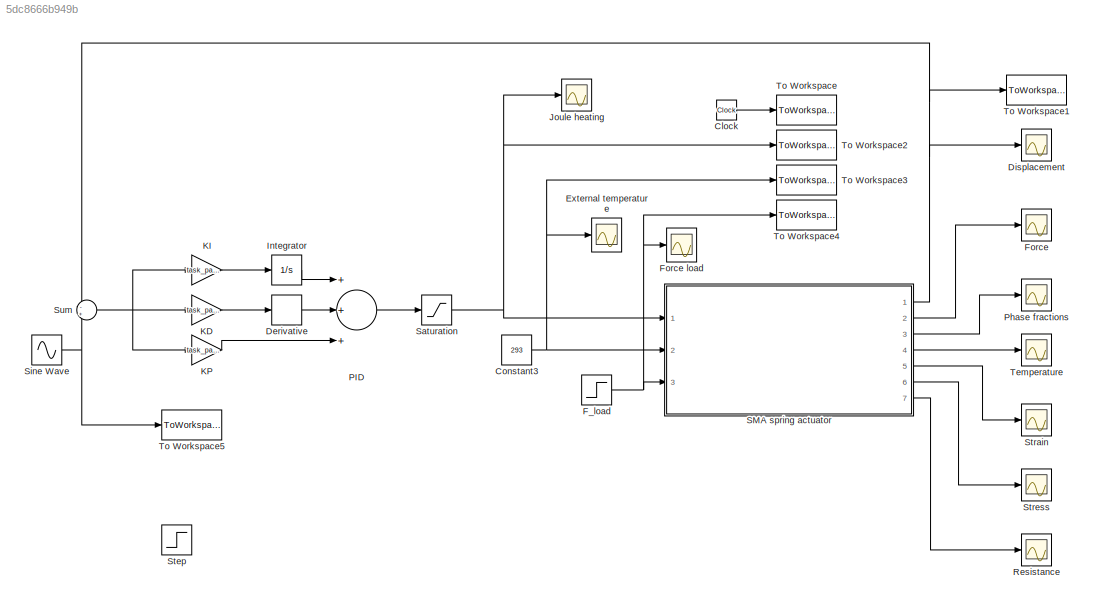
MODEL slx_5dc8666b949b
KIND model
CONFIG AbsTol = 1e-9
CONFIG EnableMultiTasking = on
CONFIG FixedStep = auto
CONFIG MaxStep = auto
CONFIG MinStep = auto
CONFIG RelTol = 1e-9
CONFIG SampleTimeConstraint = Unconstrained
CONFIG Solver = ode15s
CONFIG SolverName = ode15s
CONFIG StartTime = 0.0
CONFIG StopTime = 3.5
BLOCK [Scope]  Force load
  Floating = off
  NumInputPorts = 1
  Ports = [1]
  ScopeSpecificationString = C++SS(StrPVP('Open','off'),StrPVP('TimeRange','auto'),StrPVP('TickLabels','OneTimeTick'),StrPVP('ShowLegends','off'),StrPVP('LimitDataPoints','off'),StrPVP('MaxDataPoints','5000'),StrPVP('SaveToWorkspace','off'),StrPVP('SaveName','ScopeData2'),StrPVP('YMin','-10'),StrPVP('YMax','10'),StrPVP('BlockParamSampleInput','off'),StrPVP('BlockParamSampleTime','-1'),StrPVP('ZoomMode','on'),StrPVP('Grid','on...<+603ch>
BLOCK [Clock] Clock
BLOCK [Constant] Constant3
  Value = 293
BLOCK [Derivative] Derivative
BLOCK [Scope] Displacement
  Floating = off
  NumInputPorts = 1
  Ports = [1]
  ScopeSpecificationString = Simulink.scopes.TimeScopeBlockCfg('CurrentConfiguration', extmgr.ConfigurationSet(extmgr.Configuration('Core','General UI',true,'FigureColor',[0.156862745098039 0.156862745098039 0.156862745098039]),extmgr.Configuration('Core','Source UI',true),extmgr.Configuration('Sources','WiredSimulink',true,'DataLoggingSaveFormat','StructureWithTime','DataLoggingDecimation','1','DataLoggingDecimateData',true)...<+2795ch>
BLOCK [Scope] External temperature
  Floating = off
  NumInputPorts = 1
  Ports = [1]
  ScopeSpecificationString = C++SS(StrPVP('Open','off'),StrPVP('TimeRange','auto'),StrPVP('TickLabels','OneTimeTick'),StrPVP('ShowLegends','off'),StrPVP('LimitDataPoints','off'),StrPVP('MaxDataPoints','5000'),StrPVP('SaveToWorkspace','off'),StrPVP('SaveName','ScopeData2'),StrPVP('YMin','-10'),StrPVP('YMax','10'),StrPVP('BlockParamSampleInput','off'),StrPVP('BlockParamSampleTime','-1'),StrPVP('ZoomMode','on'),StrPVP('Grid','on...<+571ch>
BLOCK [Step] F_load
  After = 0.05*0
  SampleTime = 0
BLOCK [Scope] Force
  Floating = off
  NumInputPorts = 1
  Ports = [1]
  ScopeSpecificationString = Simulink.scopes.TimeScopeBlockCfg('CurrentConfiguration', extmgr.ConfigurationSet(extmgr.Configuration('Core','General UI',true,'FigureColor',[0.156862745098039 0.156862745098039 0.156862745098039]),extmgr.Configuration('Core','Source UI',true),extmgr.Configuration('Sources','WiredSimulink',true,'DataLoggingVariableName','ScopeData3','DataLoggingSaveFormat','StructureWithTime','DataLoggingDecimati...<+2806ch>
BLOCK [Integrator] Integrator
  Ports = [1, 1]
BLOCK [Scope] Joule heating
  Floating = off
  NumInputPorts = 1
  Ports = [1]
  ScopeSpecificationString = Simulink.scopes.TimeScopeBlockCfg('CurrentConfiguration', extmgr.ConfigurationSet(extmgr.Configuration('Core','General UI',true,'FigureColor',[0.156862745098039 0.156862745098039 0.156862745098039]),extmgr.Configuration('Core','Source UI',true),extmgr.Configuration('Sources','WiredSimulink',true,'DataLoggingVariableName','ScopeData1','DataLoggingSaveFormat','StructureWithTime','DataLoggingDecimati...<+2831ch>
BLOCK [Gain] KD
  Gain = task_params.D
  OutDataTypeStr = Inherit: Inherit via internal rule
  ParamDataTypeStr = Inherit: Inherit via internal rule
  SaturateOnIntegerOverflow = off
BLOCK [Gain] KI
  Gain = task_params.I
  OutDataTypeStr = Inherit: Inherit via internal rule
  ParamDataTypeStr = Inherit: Inherit via internal rule
  SaturateOnIntegerOverflow = off
BLOCK [Gain] KP
  Gain = task_params.P
  OutDataTypeStr = Inherit: Inherit via internal rule
  ParamDataTypeStr = Inherit: Inherit via internal rule
  SaturateOnIntegerOverflow = off
BLOCK [Sum] PID
  InputSameDT = off
  Inputs = +++
  OutDataTypeStr = Inherit: Inherit via internal rule
  Ports = [3, 1]
  SaturateOnIntegerOverflow = off
BLOCK [Scope] Phase fractions
  Floating = off
  NumInputPorts = 1
  Ports = [1]
  ScopeSpecificationString = Simulink.scopes.TimeScopeBlockCfg('CurrentConfiguration', extmgr.ConfigurationSet(extmgr.Configuration('Core','General UI',true,'FigureColor',[0.156862745098039 0.156862745098039 0.156862745098039]),extmgr.Configuration('Core','Source UI',true),extmgr.Configuration('Sources','WiredSimulink',true,'DataLoggingVariableName','ScopeData4','DataLoggingSaveFormat','StructureWithTime','DataLoggingDecimati...<+2838ch>
BLOCK [Scope] Resistance
  Floating = off
  NumInputPorts = 1
  Ports = [1]
  ScopeSpecificationString = Simulink.scopes.TimeScopeBlockCfg('CurrentConfiguration', extmgr.ConfigurationSet(extmgr.Configuration('Core','General UI',true,'FigureColor',[0.156862745098039 0.156862745098039 0.156862745098039]),extmgr.Configuration('Core','Source UI',true),extmgr.Configuration('Sources','WiredSimulink',true,'DataLoggingVariableName','ScopeData8','DataLoggingSaveFormat','StructureWithTime','DataLoggingDecimati...<+2818ch>
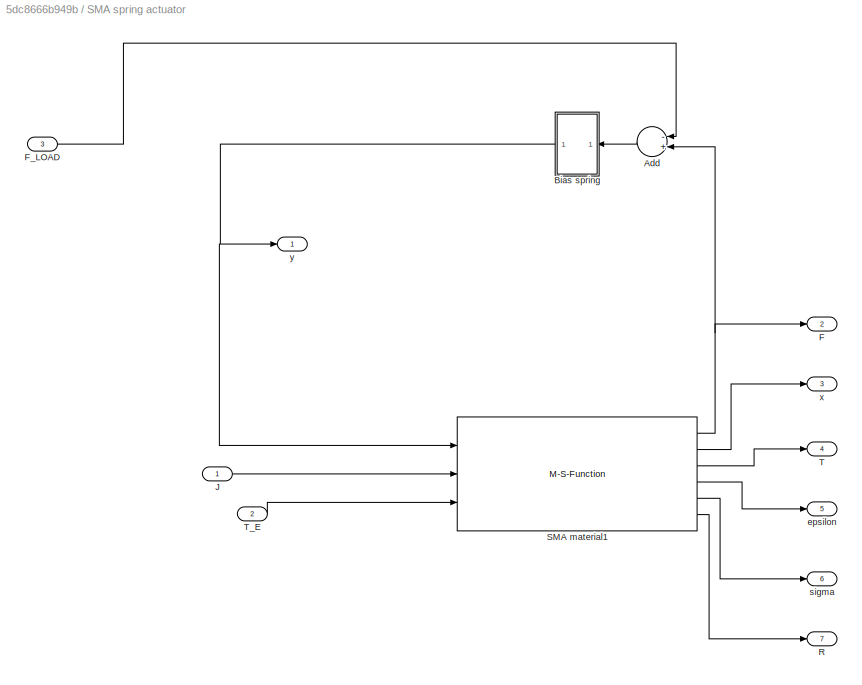
BLOCK [SubSystem] SMA spring actuator
  Ports = [3, 7]
  RequestExecContextInheritance = off
BLOCK [Sum] SMA spring actuator/Add
  InputSameDT = off
  Inputs = -+
  OutDataTypeStr = Inherit: Inherit via internal rule
  Ports = [2, 1]
  SaturateOnIntegerOverflow = off
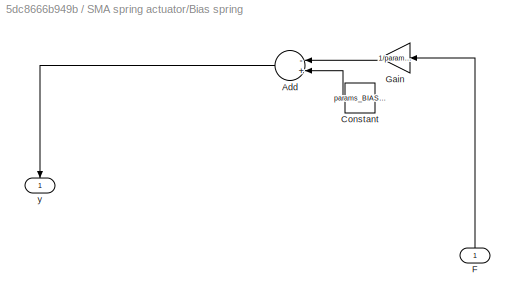
BLOCK [SubSystem] SMA spring actuator/Bias spring
  Ports = [1, 1]
  RequestExecContextInheritance = off
BLOCK [Sum] SMA spring actuator/Bias spring/Add
  InputSameDT = off
  Inputs = -+
  OutDataTypeStr = Inherit: Inherit via internal rule
  Ports = [2, 1]
  SaturateOnIntegerOverflow = off
BLOCK [Constant] SMA spring actuator/Bias spring/Constant
  Value = params_BIAS.y0s
BLOCK [Inport] SMA spring actuator/Bias spring/F
  IconDisplay = Port number
BLOCK [Gain] SMA spring actuator/Bias spring/Gain
  Gain = 1/params_BIAS.ks
  OutDataTypeStr = Inherit: Inherit via internal rule
  ParamDataTypeStr = Inherit: Inherit via internal rule
  SaturateOnIntegerOverflow = off
BLOCK [Outport] SMA spring actuator/Bias spring/y
  IconDisplay = Port number
BLOCK [Outport] SMA spring actuator/F
  IconDisplay = Port number
  Port = 2
BLOCK [Inport] SMA spring actuator/F_LOAD
  IconDisplay = Port number
  Port = 3
BLOCK [Inport] SMA spring actuator/J
  IconDisplay = Port number
BLOCK [Outport] SMA spring actuator/R
  IconDisplay = Port number
  Port = 7
BLOCK [M-S-Function] SMA spring actuator/SMA material1
  FunctionName = sSMA_displacementIn_PC2
  Parameters = params_PC2, initConds_PC2
  Ports = [3, 6]
BLOCK [Outport] SMA spring actuator/T
  IconDisplay = Port number
  Port = 4
BLOCK [Inport] SMA spring actuator/T_E
  IconDisplay = Port number
  Port = 2
BLOCK [Outport] SMA spring actuator/epsilon
  IconDisplay = Port number
  Port = 5
BLOCK [Outport] SMA spring actuator/sigma
  IconDisplay = Port number
  Port = 6
BLOCK [Outport] SMA spring actuator/x
  IconDisplay = Port number
  Port = 3
BLOCK [Outport] SMA spring actuator/y
  IconDisplay = Port number
BLOCK [Saturate] Saturation
  InputPortMap = u0
  LowerLimit = 0
  Ports = [1, 1]
  UpperLimit = 0.25
  ZeroCross = off
BLOCK [Sin] Sine Wave
  Amplitude = task_params.sine_A
  Bias = task_params.sine_bias
  Frequency = 2 * pi * task_params.sine_f
  Ports = [0, 1]
  SampleTime = 0
BLOCK [Step] Step
  After = 0.25*0.5
  SampleTime = 0
  Time = 0
BLOCK [Scope] Strain
  Floating = off
  NumInputPorts = 1
  Ports = [1]
  ScopeSpecificationString = C++SS(StrPVP('Open','off'),StrPVP('TimeRange','auto'),StrPVP('TickLabels','OneTimeTick'),StrPVP('ShowLegends','off'),StrPVP('LimitDataPoints','off'),StrPVP('MaxDataPoints','5000'),StrPVP('SaveToWorkspace','off'),StrPVP('SaveName','ScopeData6'),StrPVP('YMin','-0.0071'),StrPVP('YMax','0.06394'),StrPVP('BlockParamSampleInput','off'),StrPVP('BlockParamSampleTime','-1'),StrPVP('ZoomMode','on'),StrPVP('...<+580ch>
BLOCK [Scope] Stress
  Floating = off
  NumInputPorts = 1
  Ports = [1]
  ScopeSpecificationString = C++SS(StrPVP('Open','off'),StrPVP('TimeRange','auto'),StrPVP('TickLabels','OneTimeTick'),StrPVP('ShowLegends','off'),StrPVP('LimitDataPoints','off'),StrPVP('MaxDataPoints','5000'),StrPVP('SaveToWorkspace','off'),StrPVP('SaveName','ScopeData7'),StrPVP('YMin','-52930133.3695'),StrPVP('YMax','476371192.92141'),StrPVP('BlockParamSampleInput','off'),StrPVP('BlockParamSampleTime','-1'),StrPVP('ZoomMode'...<+595ch>
BLOCK [Sum] Sum
  IconShape = round
  InputSameDT = off
  Inputs = -+
  OutDataTypeStr = Inherit: Inherit via internal rule
  Ports = [2, 1]
  SaturateOnIntegerOverflow = off
BLOCK [Scope] Temperature
  Floating = off
  NumInputPorts = 1
  Ports = [1]
  ScopeSpecificationString = Simulink.scopes.TimeScopeBlockCfg('CurrentConfiguration', extmgr.ConfigurationSet(extmgr.Configuration('Core','General UI',true,'FigureColor',[0.156862745098039 0.156862745098039 0.156862745098039]),extmgr.Configuration('Core','Source UI',true),extmgr.Configuration('Sources','WiredSimulink',true,'DataLoggingVariableName','ScopeData5','DataLoggingSaveFormat','StructureWithTime','DataLoggingDecimati...<+2828ch>
BLOCK [ToWorkspace] To Workspace
  FixptAsFi = on
  MaxDataPoints = inf
  Ports = [1]
  SampleTime = 0.01
  Save2DSignal = 3-D array (concatenate along third dimension)
  VariableName = t
BLOCK [ToWorkspace] To Workspace1
  FixptAsFi = on
  MaxDataPoints = inf
  Ports = [1]
  SampleTime = 0.01
  Save2DSignal = 3-D array (concatenate along third dimension)
  VariableName = l
BLOCK [ToWorkspace] To Workspace2
  FixptAsFi = on
  MaxDataPoints = inf
  Ports = [1]
  SampleTime = 0.01
  Save2DSignal = 3-D array (concatenate along third dimension)
  VariableName = J
BLOCK [ToWorkspace] To Workspace3
  FixptAsFi = on
  MaxDataPoints = inf
  Ports = [1]
  SampleTime = 0.01
  Save2DSignal = 3-D array (concatenate along third dimension)
  VariableName = TE
BLOCK [ToWorkspace] To Workspace4
  FixptAsFi = on
  MaxDataPoints = inf
  Ports = [1]
  SampleTime = 0.01
  Save2DSignal = 3-D array (concatenate along third dimension)
  VariableName = FL
BLOCK [ToWorkspace] To Workspace5
  FixptAsFi = on
  MaxDataPoints = inf
  Ports = [1]
  SampleTime = 0.01
  Save2DSignal = 3-D array (concatenate along third dimension)
  VariableName = ref
LINE Clock:1 -> To Workspace:1
NET Constant3:1 -> External temperature:1, SMA spring actuator:2, To Workspace3:1
LINE Derivative:1 -> PID:2
NET F_load:1 ->  Force load:1, SMA spring actuator:3, To Workspace4:1
LINE Integrator:1 -> PID:1
LINE KD:1 -> Derivative:1
LINE KI:1 -> Integrator:1
LINE KP:1 -> PID:3
LINE PID:1 -> Saturation:1
LINE SMA spring actuator/Add:1 -> SMA spring actuator/Bias spring:1
LINE SMA spring actuator/Bias spring/Add:1 -> SMA spring actuator/Bias spring/y:1
LINE SMA spring actuator/Bias spring/Constant:1 -> SMA spring actuator/Bias spring/Add:2
LINE SMA spring actuator/Bias spring/F:1 -> SMA spring actuator/Bias spring/Gain:1
LINE SMA spring actuator/Bias spring/Gain:1 -> SMA spring actuator/Bias spring/Add:1
NET SMA spring actuator/Bias spring:1 -> SMA spring actuator/SMA material1:1, SMA spring actuator/y:1
LINE SMA spring actuator/F_LOAD:1 -> SMA spring actuator/Add:1
LINE SMA spring actuator/J:1 -> SMA spring actuator/SMA material1:2
NET SMA spring actuator/SMA material1:1 -> SMA spring actuator/Add:2, SMA spring actuator/F:1
LINE SMA spring actuator/SMA material1:2 -> SMA spring actuator/x:1
LINE SMA spring actuator/SMA material1:3 -> SMA spring actuator/T:1
LINE SMA spring actuator/SMA material1:4 -> SMA spring actuator/epsilon:1
LINE SMA spring actuator/SMA material1:5 -> SMA spring actuator/sigma:1
LINE SMA spring actuator/SMA material1:6 -> SMA spring actuator/R:1
LINE SMA spring actuator/T_E:1 -> SMA spring actuator/SMA material1:3
NET SMA spring actuator:1 -> Displacement:1, Sum:1, To Workspace1:1
LINE SMA spring actuator:2 -> Force:1
LINE SMA spring actuator:3 -> Phase fractions:1
LINE SMA spring actuator:4 -> Temperature:1
LINE SMA spring actuator:5 -> Strain:1
LINE SMA spring actuator:6 -> Stress:1
LINE SMA spring actuator:7 -> Resistance:1
NET Saturation:1 -> Joule heating:1, SMA spring actuator:1, To Workspace2:1
NET Sine Wave:1 -> Sum:2, To Workspace5:1
NET Sum:1 -> KD:1, KI:1, KP:1
note: NET lines group one-source signal fan-out (src -> all destinations, sorted); 1:1 wires keep LINE
